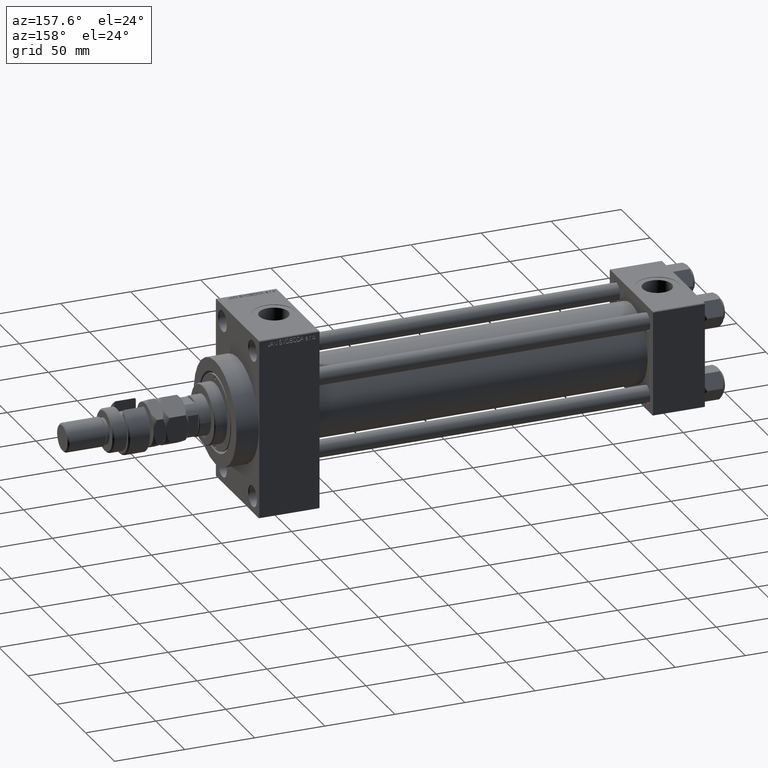
[diagram: clean part render]
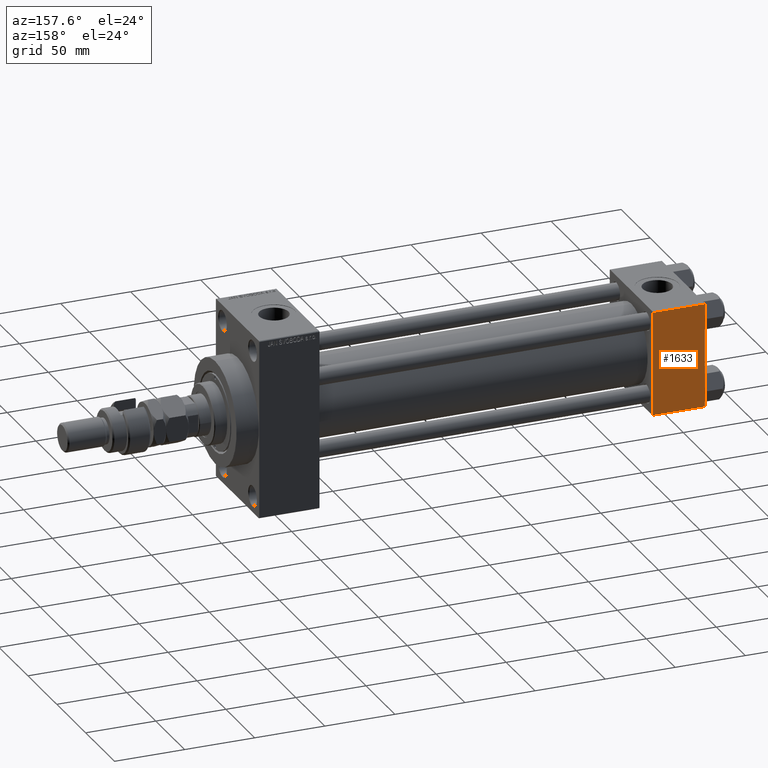
[diagram: same view with one face highlighted and labeled with its STEP entity id]
A machine part, auxiliary view. The second image highlights one B-rep face of the part: STEP entity #1633.
In plain terms, the highlighted planar face has unit normal (0, 1, 0).
Its self-contained STEP definition (entity closure, byte-faithful):
#1633 = ADVANCED_FACE ( 'NONE', ( #18867 ), #22691, .T. ) ;
#1965 = EDGE_LOOP ( 'NONE', ( #26791, #46525, #19527, #5151 ) ) ;
#3331 = EDGE_CURVE ( 'NONE', #36047, #5932, #3439, .T. ) ;
#3439 = LINE ( 'NONE', #18688, #37603 ) ;
#3528 = VECTOR ( 'NONE', #48705, 1000.000000000000000 ) ;
#4175 = EDGE_CURVE ( 'NONE', #27831, #7484, #21248, .T. ) ;
#5151 = ORIENTED_EDGE ( 'NONE', *, *, #36591, .T. ) ;
#5932 = VERTEX_POINT ( 'NONE', #7774 ) ;
#7484 = VERTEX_POINT ( 'NONE', #32977 ) ;
#7774 = CARTESIAN_POINT ( 'NONE',  ( 37.00000000000000000, 37.49999999999999289, -36.99999999999998579 ) ) ;
#7925 = CARTESIAN_POINT ( 'NONE',  ( 37.00000000000000000, 37.49999999999999289, 37.50000000000000000 ) ) ;
#14146 = CARTESIAN_POINT ( 'NONE',  ( 37.00000000000000000, 37.49999999999999289, 37.00000000000000000 ) ) ;
#18688 = CARTESIAN_POINT ( 'NONE',  ( 37.00000000000000000, 37.49999999999999289, 37.50000000000000000 ) ) ;
#18867 = FACE_OUTER_BOUND ( 'NONE', #1965, .T. ) ;
#19035 = DIRECTION ( 'NONE',  ( 1.000000000000000000, 0.000000000000000000, 0.000000000000000000 ) ) ;
#19527 = ORIENTED_EDGE ( 'NONE', *, *, #4175, .F. ) ;
#21248 = LINE ( 'NONE', #33220, #3528 ) ;
#22691 = PLANE ( 'NONE',  #35093 ) ;
#22860 = LINE ( 'NONE', #34557, #34154 ) ;
#23012 = DIRECTION ( 'NONE',  ( 0.000000000000000000, 0.000000000000000000, -1.000000000000000000 ) ) ;
#23430 = DIRECTION ( 'NONE',  ( 0.000000000000000000, -0.000000000000000000, 1.000000000000000000 ) ) ;
#25879 = LINE ( 'NONE', #44943, #47330 ) ;
#26791 = ORIENTED_EDGE ( 'NONE', *, *, #3331, .T. ) ;
#27239 = DIRECTION ( 'NONE',  ( -0.000000000000000000, 1.000000000000000000, 0.000000000000000000 ) ) ;
#27831 = VERTEX_POINT ( 'NONE', #35901 ) ;
#32977 = CARTESIAN_POINT ( 'NONE',  ( 0.000000000000000000, 37.49999999999999289, -36.99999999999998579 ) ) ;
#33220 = CARTESIAN_POINT ( 'NONE',  ( 0.000000000000000000, 37.49999999999999289, 37.50000000000000000 ) ) ;
#34015 = DIRECTION ( 'NONE',  ( -1.000000000000000000, 0.000000000000000000, 0.000000000000000000 ) ) ;
#34154 = VECTOR ( 'NONE', #19035, 1000.000000000000000 ) ;
#34557 = CARTESIAN_POINT ( 'NONE',  ( 37.00000000000000000, 37.49999999999999289, 37.00000000000000000 ) ) ;
#35093 = AXIS2_PLACEMENT_3D ( 'NONE', #7925, #27239, #23430 ) ;
#35901 = CARTESIAN_POINT ( 'NONE',  ( 0.000000000000000000, 37.49999999999999289, 37.00000000000000000 ) ) ;
#36047 = VERTEX_POINT ( 'NONE', #14146 ) ;
#36591 = EDGE_CURVE ( 'NONE', #27831, #36047, #22860, .T. ) ;
#37603 = VECTOR ( 'NONE', #23012, 1000.000000000000000 ) ;
#42684 = EDGE_CURVE ( 'NONE', #5932, #7484, #25879, .T. ) ;
#44943 = CARTESIAN_POINT ( 'NONE',  ( 37.00000000000000000, 37.49999999999999289, -36.99999999999998579 ) ) ;
#46525 = ORIENTED_EDGE ( 'NONE', *, *, #42684, .T. ) ;
#47330 = VECTOR ( 'NONE', #34015, 1000.000000000000000 ) ;
#48705 = DIRECTION ( 'NONE',  ( 0.000000000000000000, 0.000000000000000000, -1.000000000000000000 ) ) ;